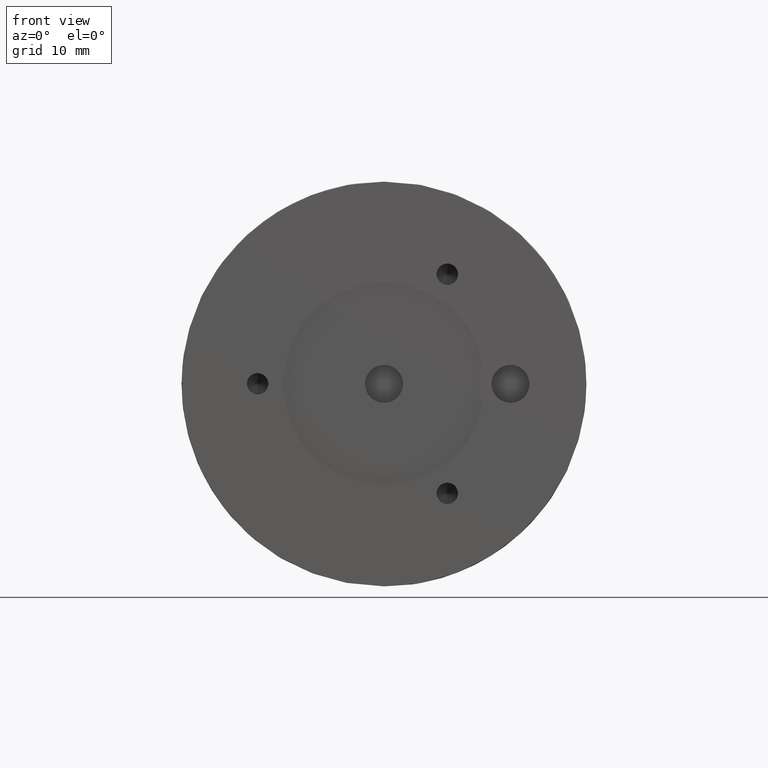
[diagram: clean part render]
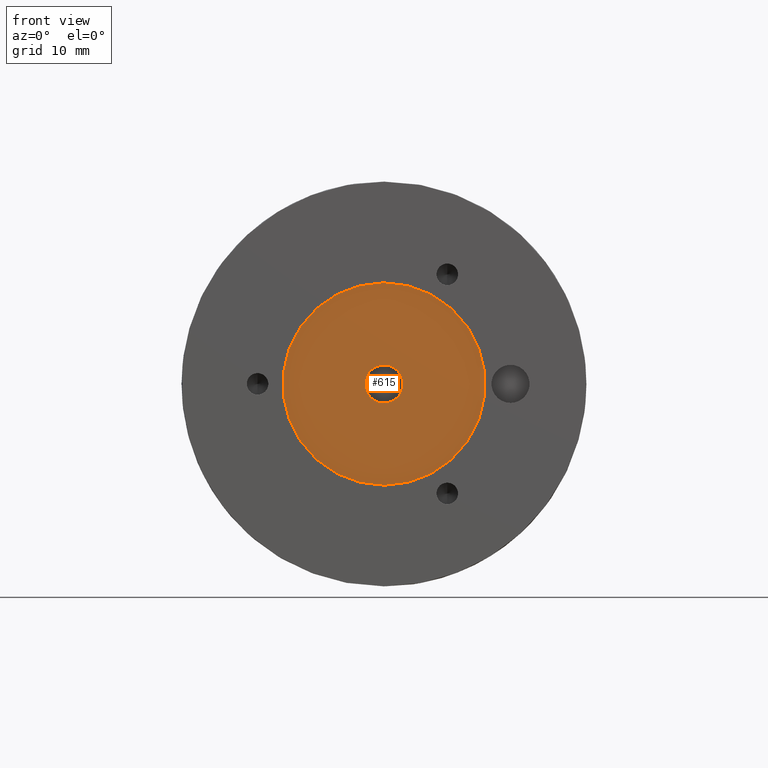
[diagram: same view with one face highlighted and labeled with its STEP entity id]
A machine part, front view. The second image highlights one B-rep face of the part: STEP entity #615.
In plain terms, the highlighted planar face has unit normal (0, -1, 0).
Its self-contained STEP definition (entity closure, byte-faithful):
#10 = DIRECTION ( 'NONE',  ( 0.0000000000000000000, 0.0000000000000000000, -1.000000000000000000 ) ) ;
#26 = CIRCLE ( 'NONE', #413, 2.387499999999999734 ) ;
#56 = CARTESIAN_POINT ( 'NONE',  ( 2.923844232964305902E-16, 0.5080000000000000071, 2.387499999999999734 ) ) ;
#77 = CARTESIAN_POINT ( 'NONE',  ( 0.0000000000000000000, 0.5080000000000000071, 0.0000000000000000000 ) ) ;
#88 = EDGE_CURVE ( 'NONE', #105, #335, #228, .T. ) ;
#105 = VERTEX_POINT ( 'NONE', #230 ) ;
#117 = ORIENTED_EDGE ( 'NONE', *, *, #88, .T. ) ;
#156 = DIRECTION ( 'NONE',  ( 0.0000000000000000000, -0.0000000000000000000, -1.000000000000000000 ) ) ;
#228 = CIRCLE ( 'NONE', #291, 12.69999999999999929 ) ;
#230 = CARTESIAN_POINT ( 'NONE',  ( -2.642881778843148241E-15, 0.5080000000000000071, -12.69999999999999929 ) ) ;
#244 = DIRECTION ( 'NONE',  ( 0.0000000000000000000, -1.000000000000000000, 0.0000000000000000000 ) ) ;
#256 = CARTESIAN_POINT ( 'NONE',  ( -1.087580343926009808E-15, 0.5080000000000000071, 12.69999999999999929 ) ) ;
#291 = AXIS2_PLACEMENT_3D ( 'NONE', #369, #831, #10 ) ;
#321 = EDGE_LOOP ( 'NONE', ( #377, #822 ) ) ;
#335 = VERTEX_POINT ( 'NONE', #256 ) ;
#349 = AXIS2_PLACEMENT_3D ( 'NONE', #577, #244, #394 ) ;
#351 = EDGE_CURVE ( 'NONE', #368, #839, #575, .T. ) ;
#352 = EDGE_LOOP ( 'NONE', ( #117, #644 ) ) ;
#368 = VERTEX_POINT ( 'NONE', #460 ) ;
#369 = CARTESIAN_POINT ( 'NONE',  ( -2.642881778843148241E-15, 0.5080000000000000071, 0.0000000000000000000 ) ) ;
#375 = DIRECTION ( 'NONE',  ( 0.0000000000000000000, 0.0000000000000000000, -1.000000000000000000 ) ) ;
#377 = ORIENTED_EDGE ( 'NONE', *, *, #351, .T. ) ;
#387 = FACE_BOUND ( 'NONE', #321, .T. ) ;
#394 = DIRECTION ( 'NONE',  ( 0.0000000000000000000, 0.0000000000000000000, -1.000000000000000000 ) ) ;
#406 = DIRECTION ( 'NONE',  ( 0.0000000000000000000, -1.000000000000000000, 0.0000000000000000000 ) ) ;
#413 = AXIS2_PLACEMENT_3D ( 'NONE', #77, #708, #375 ) ;
#460 = CARTESIAN_POINT ( 'NONE',  ( 0.0000000000000000000, 0.5080000000000000071, -2.387499999999999734 ) ) ;
#463 = DIRECTION ( 'NONE',  ( -0.0000000000000000000, 1.000000000000000000, -0.0000000000000000000 ) ) ;
#575 = CIRCLE ( 'NONE', #812, 2.387499999999999734 ) ;
#577 = CARTESIAN_POINT ( 'NONE',  ( -2.642881778843148241E-15, 0.5080000000000000071, 0.0000000000000000000 ) ) ;
#593 = CIRCLE ( 'NONE', #349, 12.69999999999999929 ) ;
#610 = AXIS2_PLACEMENT_3D ( 'NONE', #675, #406, #156 ) ;
#613 = PLANE ( 'NONE',  #610 ) ;
#615 = ADVANCED_FACE ( 'NONE', ( #828, #387 ), #613, .T. ) ;
#644 = ORIENTED_EDGE ( 'NONE', *, *, #774, .T. ) ;
#675 = CARTESIAN_POINT ( 'NONE',  ( -2.642881778843148241E-15, 0.5080000000000000071, 0.0000000000000000000 ) ) ;
#694 = EDGE_CURVE ( 'NONE', #839, #368, #26, .T. ) ;
#708 = DIRECTION ( 'NONE',  ( -0.0000000000000000000, 1.000000000000000000, -0.0000000000000000000 ) ) ;
#774 = EDGE_CURVE ( 'NONE', #335, #105, #593, .T. ) ;
#795 = DIRECTION ( 'NONE',  ( 0.0000000000000000000, 0.0000000000000000000, -1.000000000000000000 ) ) ;
#812 = AXIS2_PLACEMENT_3D ( 'NONE', #861, #463, #795 ) ;
#822 = ORIENTED_EDGE ( 'NONE', *, *, #694, .T. ) ;
#828 = FACE_OUTER_BOUND ( 'NONE', #352, .T. ) ;
#831 = DIRECTION ( 'NONE',  ( 0.0000000000000000000, -1.000000000000000000, 0.0000000000000000000 ) ) ;
#839 = VERTEX_POINT ( 'NONE', #56 ) ;
#861 = CARTESIAN_POINT ( 'NONE',  ( 0.0000000000000000000, 0.5080000000000000071, 0.0000000000000000000 ) ) ;